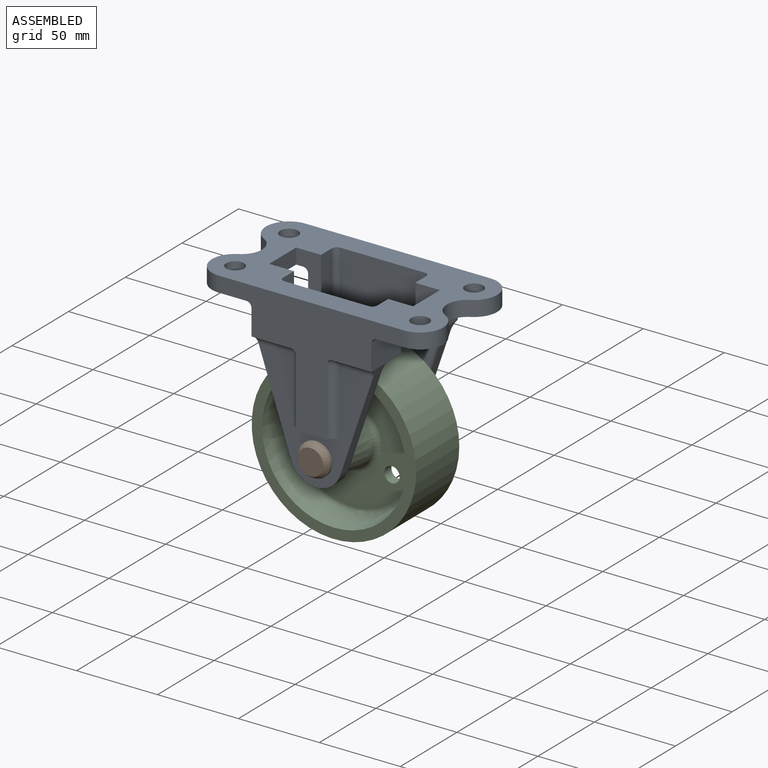
[diagram: assembled view]
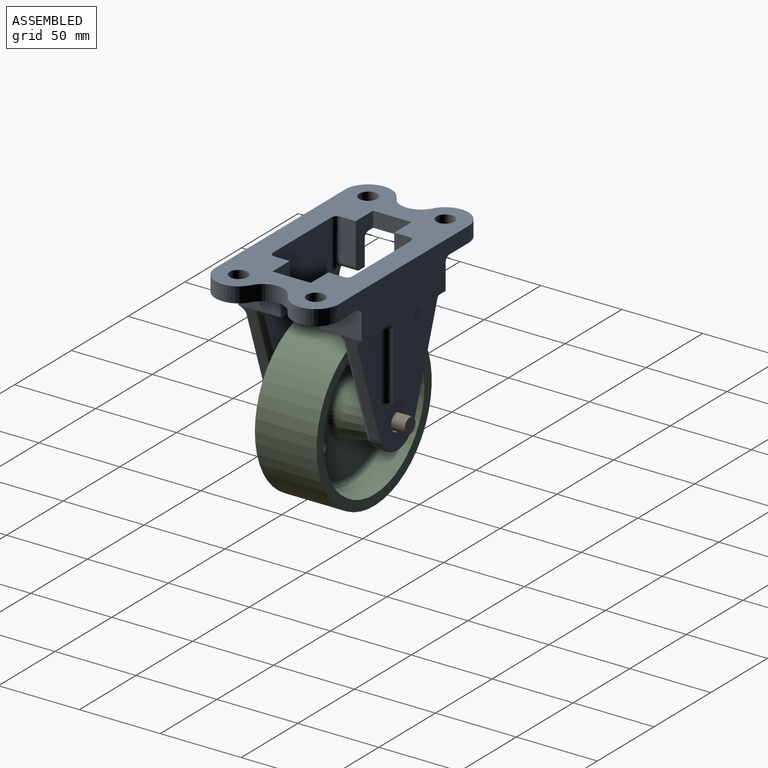
[diagram: assembled view, second angle]
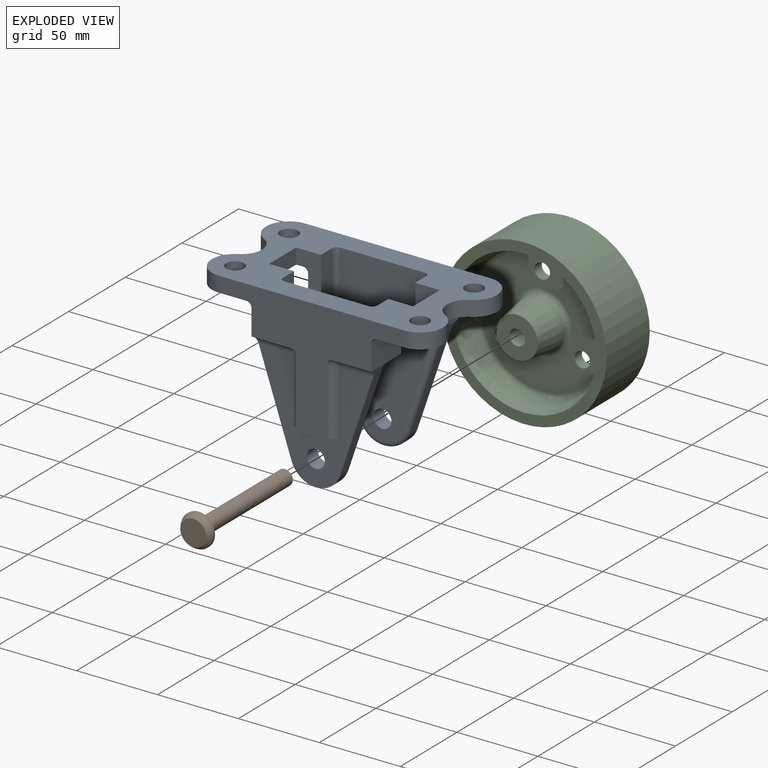
[diagram: exploded view]
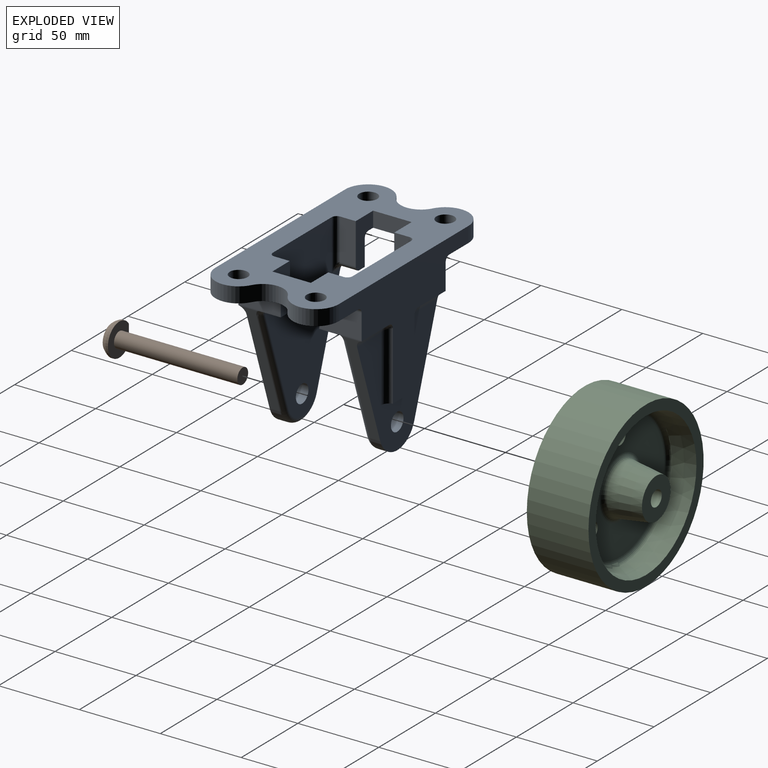
[diagram: exploded view, second angle]
ASSEMBLY  parts=3 mates=2
PART A: 107 faces, bbox 143.5x76.8x106.4 mm
  f0: plane 9.53x0mm, normal (1,0,0), area 0mm2, adj f2,f14,f16,f32
  f1: plane 28.58x15.34mm, normal (0,1,0), area 297.3mm2, adj f2,f6,f12,f13,f14,f19,f20,f29
  f2: plane 142.88x76.2mm, normal (0,0,1), area 6073.6mm2, adj f0,f1,f10,f15,f16,f17,f18,f19
  f3: cylinder r=5.56mm len=11.11mm, axis (0,1,0), area 332.5mm2, adj f9,f10
  f4: cylinder r=15.88mm len=30.08mm, axis (0,1,0), area 251mm2, adj f5,f9,f28,f64
  f5: plane 64.85x22.09mm, normal (0.95,0,-0.32), area 438.1mm2, adj f4,f6,f9,f23,f26,f27
  f6: cylinder r=3.17mm len=26.19mm, axis (0,1,0), area 19.5mm2, adj f1,f5,f12,f15,f20,f23,f26
  f7: plane 9.53x0.01mm, normal (-0.77,0,-0.63), area 0.1mm2, adj f8,f9,f10,f66
  f8: plane 9.53x0.02mm, normal (0,0,1), area 0.2mm2, adj f7,f9,f10,f66
  f9: plane 70.93x70.74mm, normal (0,-1,0), area 2004.9mm2, adj f3,f4,f5,f7,f8,f11,f21,f23
  f10: plane 101.29x65.24mm, normal (0,1,0), area 4420.9mm2, adj f2,f3,f7,f8,f24,f25,f27,f28
  f11: plane 28.96x3.97mm, normal (0,0,-1), area 85.6mm2, adj f9,f15,f21,f75
  f12: plane 26.19x15.35mm, normal (1,0,0), area 402.1mm2, adj f1,f6,f13,f15
  f13: cylinder r=3.17mm len=26.19mm, axis (0,1,0), area 130.6mm2, adj f1,f12,f14,f15
  f14: plane 76.2x31.22mm, normal (0,0,-1), area 1664.8mm2, adj f0,f1,f13,f15,f16,f17,f18,f31
  f15: plane 114.3x73.82mm, normal (0,-1,0), area 3370.6mm2, adj f2,f6,f11,f12,f13,f14,f17,f21
  f16: cylinder r=5.56mm len=11.11mm, axis (0,0,1), area 332mm2, adj f0,f2,f14,f32
  f17: cylinder r=14.29mm len=26.89mm, axis (0,0,1), area 360.9mm2, adj f2,f14,f15,f18
  f18: cylinder r=12.7mm len=22.41mm, axis (0,0,1), area 261.5mm2, adj f2,f14,f17,f48
  f19: plane 25.4x9.53mm, normal (-1,0,0), area 241.9mm2, adj f1,f2,f24,f29
  f20: plane 14.25x5.34mm, normal (0,0,-1), area 48.3mm2, adj f1,f6,f25,f26,f29
  f21: cylinder r=5.08mm len=42.07mm, axis (0,0,1), area 282.5mm2, adj f9,f11,f15,f22
  f22: bspline ~4.96x4.96mm, area 13.8mm2, adj f15,f21,f23
  f23: cylinder r=5.08mm len=24.3mm, axis (1,0,0), area 155.7mm2, adj f5,f6,f9,f15,f22
  f24: cylinder r=3.17mm len=31.75mm, axis (0,0,-1), area 142.5mm2, adj f2,f10,f19,f30
  f25: cylinder r=3.17mm len=8.83mm, axis (1,0,0), area 18.5mm2, adj f10,f20,f26,f30
  f26: bspline ~6.35x6.35mm, area 22.7mm2, adj f5,f6,f20,f25,f27
  f27: cylinder r=3.17mm len=61.92mm, axis (0.32,0,0.95), area 320.6mm2, adj f5,f10,f26,f28
  f28: torus R=12.7mm, axis (0,-1,0), area 182.8mm2, adj f4,f10,f27,f81
  f29: cylinder r=3.17mm len=9.53mm, axis (0,-1,0), area 47.5mm2, adj f1,f19,f20,f30
  f30: bspline ~6.35x6.35mm, area 10.6mm2, adj f24,f25,f29
  f31: plane 23.81x9.53mm, normal (-1,0,0), area 226.8mm2, adj f1,f2,f14,f34
  f32: plane 9.53x0.06mm, normal (0,-1,0), area 0.5mm2, adj f0,f2,f14,f16
  f33: plane 9.53x0mm, normal (1,0,0), area 0mm2, adj f2,f14,f47,f61
  f34: plane 28.58x15.34mm, normal (0,-1,0), area 297.3mm2, adj f2,f14,f31,f38,f44,f45,f49,f50
  f35: cylinder r=5.56mm len=11.11mm, axis (0,-1,0), area 332.5mm2, adj f41,f42
  f36: cylinder r=15.88mm len=30.08mm, axis (0,-1,0), area 251mm2, adj f37,f41,f58,f88
  f37: plane 64.85x22.09mm, normal (0.95,0,-0.32), area 438.1mm2, adj f36,f38,f41,f53,f56,f57
  f38: cylinder r=3.17mm len=26.19mm, axis (0,-1,0), area 19.5mm2, adj f34,f37,f44,f46,f50,f53,f56
  f39: plane 9.53x0.01mm, normal (-0.77,0,-0.63), area 0.1mm2, adj f40,f41,f42,f90
  f40: plane 9.53x0.02mm, normal (0,0,1), area 0.2mm2, adj f39,f41,f42,f90
  f41: plane 70.93x70.74mm, normal (0,1,0), area 2004.9mm2, adj f35,f36,f37,f39,f40,f43,f51,f53
  f42: plane 101.29x65.24mm, normal (0,-1,0), area 4420.9mm2, adj f2,f35,f39,f40,f54,f55,f57,f58
  f43: plane 28.96x3.97mm, normal (0,0,-1), area 85.6mm2, adj f41,f46,f51,f97
  f44: plane 26.19x15.35mm, normal (1,0,0), area 402.1mm2, adj f34,f38,f45,f46
  f45: cylinder r=3.17mm len=26.19mm, axis (0,-1,0), area 130.6mm2, adj f14,f34,f44,f46
  f46: plane 114.3x73.82mm, normal (0,1,0), area 3370.6mm2, adj f2,f14,f38,f43,f44,f45,f48,f51
  f47: cylinder r=5.56mm len=11.11mm, axis (0,0,1), area 332mm2, adj f2,f14,f33,f61
  f48: cylinder r=14.29mm len=26.89mm, axis (0,0,1), area 360.9mm2, adj f2,f14,f18,f46
  f49: plane 25.4x9.53mm, normal (-1,0,0), area 241.9mm2, adj f2,f34,f54,f59
  f50: plane 14.25x5.34mm, normal (0,0,-1), area 48.3mm2, adj f34,f38,f55,f56,f59
  f51: cylinder r=5.08mm len=42.07mm, axis (0,0,1), area 282.5mm2, adj f41,f43,f46,f52
  f52: bspline ~4.96x4.96mm, area 13.8mm2, adj f46,f51,f53
  f53: cylinder r=5.08mm len=24.3mm, axis (1,0,0), area 155.7mm2, adj f37,f38,f41,f46,f52
  f54: cylinder r=3.17mm len=31.75mm, axis (0,0,-1), area 142.5mm2, adj f2,f42,f49,f60
  f55: cylinder r=3.17mm len=8.83mm, axis (1,0,0), area 18.5mm2, adj f42,f50,f56,f60
  f56: bspline ~6.35x6.35mm, area 22.7mm2, adj f37,f38,f50,f55,f57
  f57: cylinder r=3.17mm len=61.92mm, axis (0.32,0,0.95), area 320.6mm2, adj f37,f42,f56,f58
  f58: torus R=12.7mm, axis (0,1,0), area 182.8mm2, adj f36,f42,f57,f103
  f59: cylinder r=3.17mm len=9.53mm, axis (0,1,0), area 47.5mm2, adj f34,f49,f50,f60
  f60: bspline ~6.35x6.35mm, area 10.6mm2, adj f54,f55,f59
  f61: plane 9.53x0.06mm, normal (0,1,0), area 0.5mm2, adj f2,f14,f33,f47
  f62: plane 9.53x0mm, normal (-1,0,0), area 0mm2, adj f2,f69,f70,f85
  f63: plane 28.58x15.34mm, normal (0,1,0), area 297.3mm2, adj f2,f65,f67,f68,f69,f73,f74,f82
  f64: plane 64.85x22.09mm, normal (-0.95,0,-0.32), area 438.1mm2, adj f4,f9,f65,f77,f80,f81
  f65: cylinder r=3.17mm len=26.19mm, axis (0,1,0), area 19.5mm2, adj f15,f63,f64,f67,f74,f77,f80
  f66: plane 9.53x0.01mm, normal (0.77,0,-0.63), area 0.1mm2, adj f7,f8,f9,f10
  f67: plane 26.19x15.35mm, normal (-1,0,0), area 402.1mm2, adj f15,f63,f65,f68
  f68: cylinder r=3.17mm len=26.19mm, axis (0,1,0), area 130.6mm2, adj f15,f63,f67,f69
  f69: plane 76.2x31.22mm, normal (0,0,-1), area 1664.8mm2, adj f15,f46,f62,f63,f68,f70,f71,f72
  f70: cylinder r=5.56mm len=11.11mm, axis (0,0,1), area 332mm2, adj f2,f62,f69,f85
  f71: cylinder r=14.29mm len=26.89mm, axis (0,0,1), area 360.9mm2, adj f2,f15,f69,f72
  f72: cylinder r=12.7mm len=22.41mm, axis (0,0,1), area 261.5mm2, adj f2,f69,f71,f94
  f73: plane 25.4x9.53mm, normal (1,0,0), area 241.9mm2, adj f2,f63,f78,f82
  f74: plane 14.25x5.34mm, normal (0,0,-1), area 48.3mm2, adj f63,f65,f79,f80,f82
  f75: cylinder r=5.08mm len=42.07mm, axis (0,0,1), area 282.5mm2, adj f9,f11,f15,f76
  f76: bspline ~4.96x4.96mm, area 13.8mm2, adj f15,f75,f77
  f77: cylinder r=5.08mm len=24.3mm, axis (-1,0,0), area 155.7mm2, adj f9,f15,f64,f65,f76
  f78: cylinder r=3.17mm len=31.75mm, axis (0,0,-1), area 142.5mm2, adj f2,f10,f73,f83
  f79: cylinder r=3.17mm len=8.83mm, axis (-1,0,0), area 18.5mm2, adj f10,f74,f80,f83
  f80: bspline ~6.35x6.35mm, area 22.7mm2, adj f64,f65,f74,f79,f81
  f81: cylinder r=3.17mm len=61.92mm, axis (-0.32,0,0.95), area 320.6mm2, adj f10,f28,f64,f80
  f82: cylinder r=3.17mm len=9.53mm, axis (0,-1,0), area 47.5mm2, adj f63,f73,f74,f83
  f83: bspline ~6.35x6.35mm, area 10.6mm2, adj f78,f79,f82
  f84: plane 23.81x9.53mm, normal (1,0,0), area 226.8mm2, adj f2,f63,f69,f87
  f85: plane 9.53x0.06mm, normal (0,-1,0), area 0.5mm2, adj f2,f62,f69,f70
  f86: plane 9.53x0mm, normal (-1,0,0), area 0mm2, adj f2,f69,f93,f106
  f87: plane 28.58x15.34mm, normal (0,-1,0), area 297.3mm2, adj f2,f69,f84,f89,f91,f92,f95,f96
  f88: plane 64.85x22.09mm, normal (-0.95,0,-0.32), area 438.1mm2, adj f36,f41,f89,f99,f102,f103
  f89: cylinder r=3.17mm len=26.19mm, axis (0,-1,0), area 19.5mm2, adj f46,f87,f88,f91,f96,f99,f102
  f90: plane 9.53x0.01mm, normal (0.77,0,-0.63), area 0.1mm2, adj f39,f40,f41,f42
  f91: plane 26.19x15.35mm, normal (-1,0,0), area 402.1mm2, adj f46,f87,f89,f92
  f92: cylinder r=3.17mm len=26.19mm, axis (0,-1,0), area 130.6mm2, adj f46,f69,f87,f91
  f93: cylinder r=5.56mm len=11.11mm, axis (0,0,1), area 332mm2, adj f2,f69,f86,f106
  f94: cylinder r=14.29mm len=26.89mm, axis (0,0,1), area 360.9mm2, adj f2,f46,f69,f72
  f95: plane 25.4x9.53mm, normal (1,0,0), area 241.9mm2, adj f2,f87,f100,f104
  f96: plane 14.25x5.34mm, normal (0,0,-1), area 48.3mm2, adj f87,f89,f101,f102,f104
  f97: cylinder r=5.08mm len=42.07mm, axis (0,0,1), area 282.5mm2, adj f41,f43,f46,f98
  f98: bspline ~4.96x4.96mm, area 13.8mm2, adj f46,f97,f99
  f99: cylinder r=5.08mm len=24.3mm, axis (-1,0,0), area 155.7mm2, adj f41,f46,f88,f89,f98
  f100: cylinder r=3.17mm len=31.75mm, axis (0,0,-1), area 142.5mm2, adj f2,f42,f95,f105
  f101: cylinder r=3.17mm len=8.83mm, axis (-1,0,0), area 18.5mm2, adj f42,f96,f102,f105
  f102: bspline ~7.45x6.35mm, area 22.7mm2, adj f88,f89,f96,f101,f103
  f103: cylinder r=3.17mm len=61.92mm, axis (-0.32,0,0.95), area 320.6mm2, adj f42,f58,f88,f102
  f104: cylinder r=3.17mm len=9.53mm, axis (0,1,0), area 47.5mm2, adj f87,f95,f96,f105
  f105: bspline ~6.35x6.35mm, area 10.6mm2, adj f100,f101,f104
  f106: plane 9.53x0.06mm, normal (0,1,0), area 0.5mm2, adj f2,f69,f86,f93
PART B: 7 faces, bbox 81x20.2x20.2 mm
  f0: cylinder r=10.11mm len=20.23mm, axis (-1,0,0), area 81.8mm2, adj f3,f4,f6
  f1: plane 9.53x9.53mm, normal (1,0,0), area 71.3mm2, adj f2
  f2: cylinder r=4.76mm len=76.2mm, axis (-1,0,0), area 2280.2mm2, adj f1,f3
  f3: plane 20.23x18.5mm, normal (1,0,0), area 236.9mm2, adj f0,f2,f6
  f4: sphere r=11.11mm, area 195.9mm2, adj f0,f5,f6
  f5: plane 15.88x15.88mm, normal (-1,0,0), area 197.9mm2, adj f4
  f6: plane 11.31x4.28mm, normal (0,0,1), area 39.1mm2, adj f0,f3,f4
PART C: 19 faces, bbox 101.6x101.6x50.8 mm
  f0: cylinder r=50.8mm len=101.6mm, axis (0,0,1), area 12161mm2, adj f1,f15
  f1: plane 101.6x101.6mm, normal (0,0,1), area 1900.2mm2, adj f0,f2
  f2: cone r=44.45mm half-angle=11.3deg, axis (0,0,1), area 3680.8mm2, adj f1,f3
  f3: torus R=38.67mm, axis (0,0,1), area 1110.5mm2, adj f2,f4
  f4: plane 77.34x77.34mm, normal (0,0,1), area 3394.4mm2, adj f3,f5,f16,f17,f18
  f5: torus R=18.63mm, axis (0,0,1), area 476.6mm2, adj f4,f6
  f6: cone r=15.49mm half-angle=8.1deg, axis (0,0,-1), area 1744.1mm2, adj f5,f7
  f7: plane 25.4x25.4mm, normal (0,0,1), area 433.5mm2, adj f6,f8
  f8: cylinder r=4.83mm len=50.8mm, axis (0,0,1), area 1540.4mm2, adj f7,f9
  f9: plane 25.4x25.4mm, normal (0,0,-1), area 433.5mm2, adj f8,f10
  f10: cone r=12.7mm half-angle=8.1deg, axis (0,0,1), area 1744.1mm2, adj f9,f11
  f11: torus R=18.63mm, axis (0,0,1), area 476.6mm2, adj f10,f12
  f12: plane 77.34x77.34mm, normal (0,0,-1), area 3394.4mm2, adj f11,f13,f16,f17,f18
  f13: torus R=38.67mm, axis (0,0,1), area 1110.5mm2, adj f12,f14
  f14: cone r=44.45mm half-angle=11.3deg, axis (0,0,-1), area 3680.8mm2, adj f13,f15
  f15: plane 101.6x101.6mm, normal (0,0,-1), area 1900.2mm2, adj f0,f14
  f16: cylinder r=4.76mm len=9.53mm, axis (0,0,1), area 190mm2, adj f4,f12
  f17: cylinder r=4.76mm len=9.53mm, axis (0,0,1), area 190mm2, adj f4,f12
  f18: cylinder r=4.76mm len=9.53mm, axis (0,0,1), area 190mm2, adj f4,f12
PLACE A t=(-29.75,41.8,88.47)mm
PLACE B rot(axis=(-0.58,-0.58,0.58),120deg) t=(-29.75,84.69,-0.12)mm
PLACE C rot(axis=(1,0,0),90deg) t=(-29.75,92.6,-0.12)mm
MATE cylindrical B.f0 <-> A.f3  axis (0,-1,0) through (-29.75,32.28,-0.12)mm
MATE fastened C.f0 <-> A.f3  axis (0,-1,0) through (-29.75,41.8,-0.12)mm
